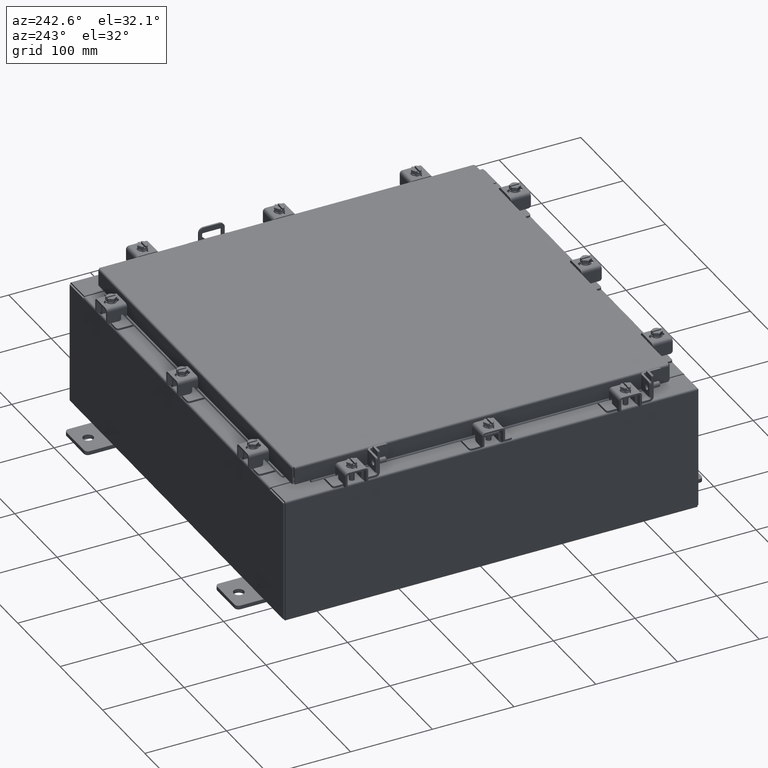
[diagram: clean part render]
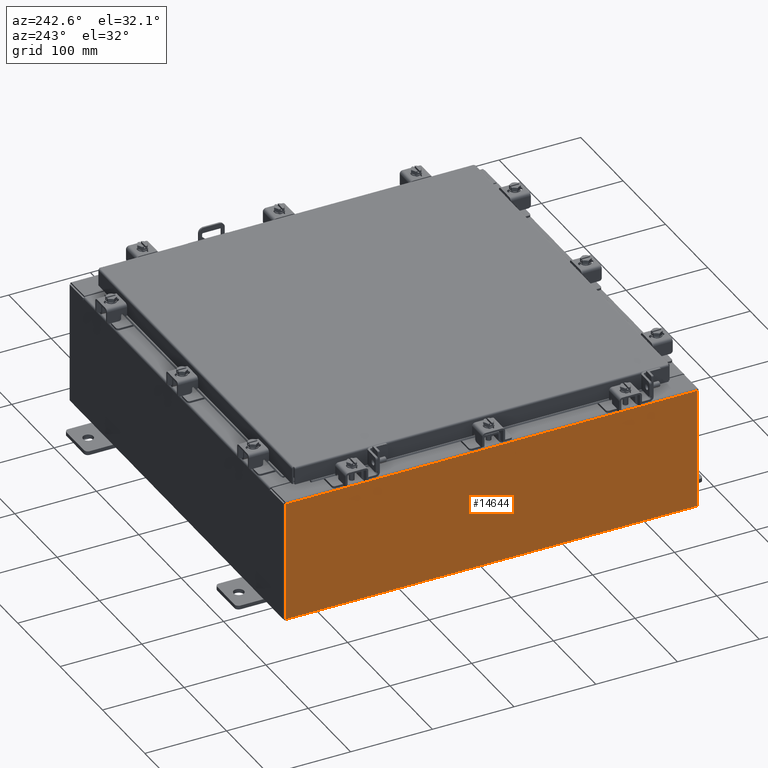
[diagram: same view with one face highlighted and labeled with its STEP entity id]
A machine part, auxiliary view. The second image highlights one B-rep face of the part: STEP entity #14644.
In plain terms, the highlighted planar face has unit normal (1, 0, 0).
Its self-contained STEP definition (entity closure, byte-faithful):
#4 = VECTOR ( 'NONE', #9352, 39.37007874015748100 ) ;
#1180 = ORIENTED_EDGE ( 'NONE', *, *, #8792, .T. ) ;
#2174 = CARTESIAN_POINT ( 'NONE',  ( -10.00000000000000000, 9.925300000000001800, -3.345627304943080600E-014 ) ) ;
#3858 = PLANE ( 'NONE',  #6810 ) ;
#3947 = DIRECTION ( 'NONE',  ( 3.319545939341922800E-015, 0.0000000000000000000, -1.000000000000000000 ) ) ;
#4065 = ORIENTED_EDGE ( 'NONE', *, *, #16774, .F. ) ;
#4961 = EDGE_CURVE ( 'NONE', #8495, #22319, #15981, .T. ) ;
#5628 = DIRECTION ( 'NONE',  ( 1.000000000000000000, 0.0000000000000000000, 3.319545939341922800E-015 ) ) ;
#6683 = VECTOR ( 'NONE', #3947, 39.37007874015748100 ) ;
#6756 = VECTOR ( 'NONE', #16272, 39.37007874015748100 ) ;
#6766 = CARTESIAN_POINT ( 'NONE',  ( -10.00000000000000000, -9.925299999999998200, -3.345627304943080600E-014 ) ) ;
#6810 = AXIS2_PLACEMENT_3D ( 'NONE', #16009, #5628, #17784 ) ;
#7315 = VERTEX_POINT ( 'NONE', #10715 ) ;
#8495 = VERTEX_POINT ( 'NONE', #10283 ) ;
#8786 = LINE ( 'NONE', #19745, #4 ) ;
#8792 = EDGE_CURVE ( 'NONE', #22319, #19316, #11309, .T. ) ;
#9352 = DIRECTION ( 'NONE',  ( -0.0000000000000000000, 1.000000000000000000, -0.0000000000000000000 ) ) ;
#9635 = VECTOR ( 'NONE', #17184, 39.37007874015748100 ) ;
#10216 = CARTESIAN_POINT ( 'NONE',  ( -10.00000000000000000, 9.925300000000001800, 0.01299999999999985900 ) ) ;
#10283 = CARTESIAN_POINT ( 'NONE',  ( -10.00000000000002000, -9.925299999999992900, 5.837599999999999200 ) ) ;
#10715 = CARTESIAN_POINT ( 'NONE',  ( -10.00000000000000000, -9.925299999999996500, 0.01299999999999986400 ) ) ;
#11309 = LINE ( 'NONE', #2174, #6683 ) ;
#14268 = EDGE_LOOP ( 'NONE', ( #18203, #1180, #4065, #19352 ) ) ;
#14644 = ADVANCED_FACE ( 'NONE', ( #20051 ), #3858, .F. ) ;
#15981 = LINE ( 'NONE', #21430, #6756 ) ;
#16009 = CARTESIAN_POINT ( 'NONE',  ( -10.00000000000000000, 0.0000000000000000000, -3.345627304943080600E-014 ) ) ;
#16272 = DIRECTION ( 'NONE',  ( 0.0000000000000000000, 1.000000000000000000, 0.0000000000000000000 ) ) ;
#16507 = EDGE_CURVE ( 'NONE', #7315, #8495, #18869, .T. ) ;
#16774 = EDGE_CURVE ( 'NONE', #7315, #19316, #8786, .T. ) ;
#17184 = DIRECTION ( 'NONE',  ( -3.319545939341922800E-015, 0.0000000000000000000, 1.000000000000000000 ) ) ;
#17363 = CARTESIAN_POINT ( 'NONE',  ( -10.00000000000002000, 9.925300000000001800, 5.837599999999999200 ) ) ;
#17784 = DIRECTION ( 'NONE',  ( 3.319545939341922800E-015, 0.0000000000000000000, -1.000000000000000000 ) ) ;
#18203 = ORIENTED_EDGE ( 'NONE', *, *, #4961, .T. ) ;
#18869 = LINE ( 'NONE', #6766, #9635 ) ;
#19316 = VERTEX_POINT ( 'NONE', #10216 ) ;
#19352 = ORIENTED_EDGE ( 'NONE', *, *, #16507, .T. ) ;
#19745 = CARTESIAN_POINT ( 'NONE',  ( -10.00000000000000000, 9.925300000000001800, 0.01299999999999986400 ) ) ;
#20051 = FACE_OUTER_BOUND ( 'NONE', #14268, .T. ) ;
#21430 = CARTESIAN_POINT ( 'NONE',  ( -10.00000000000002000, -9.925299999999992900, 5.837599999999999200 ) ) ;
#22319 = VERTEX_POINT ( 'NONE', #17363 ) ;